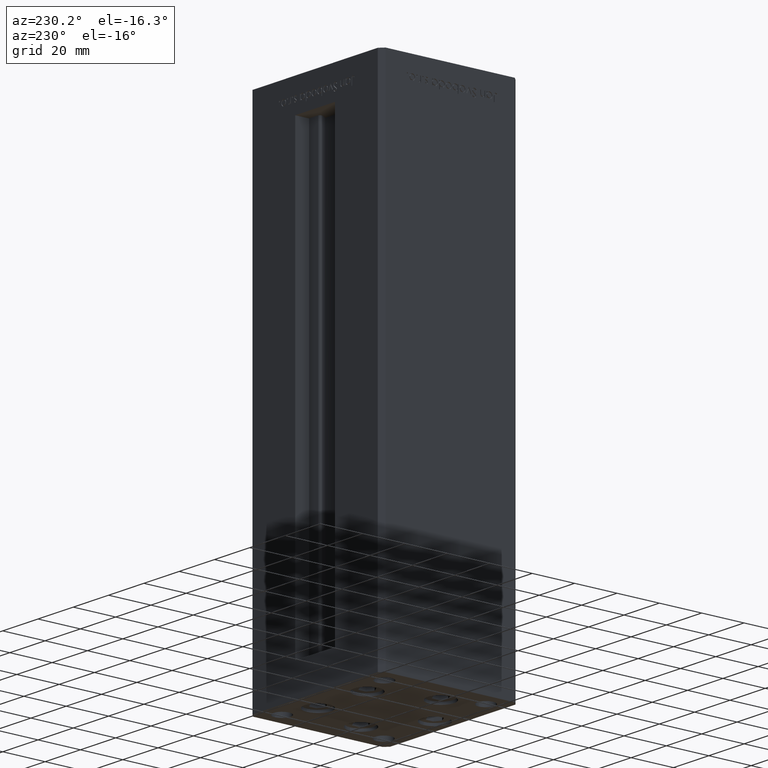
[diagram: clean part render]
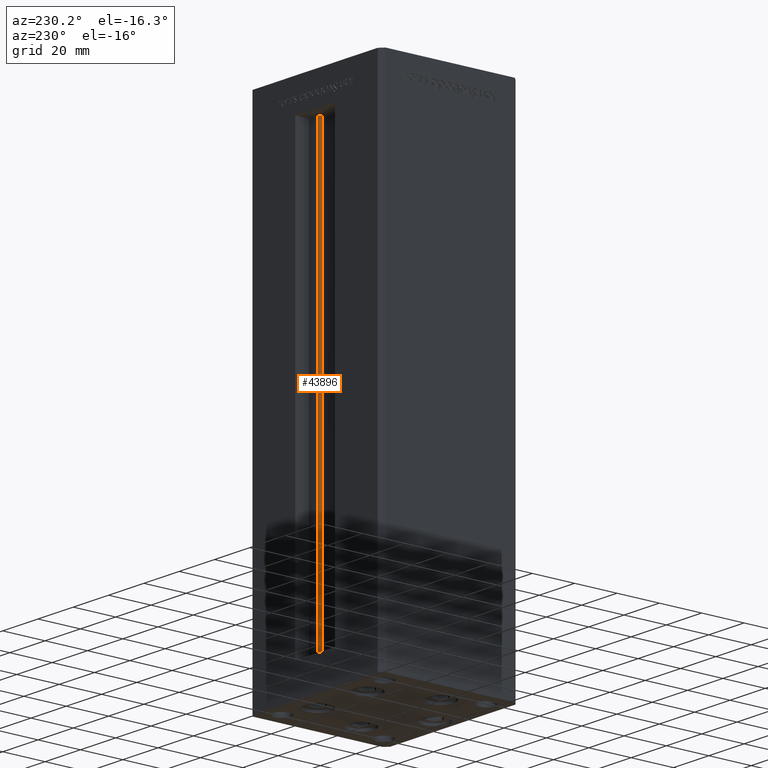
[diagram: same view with one face highlighted and labeled with its STEP entity id]
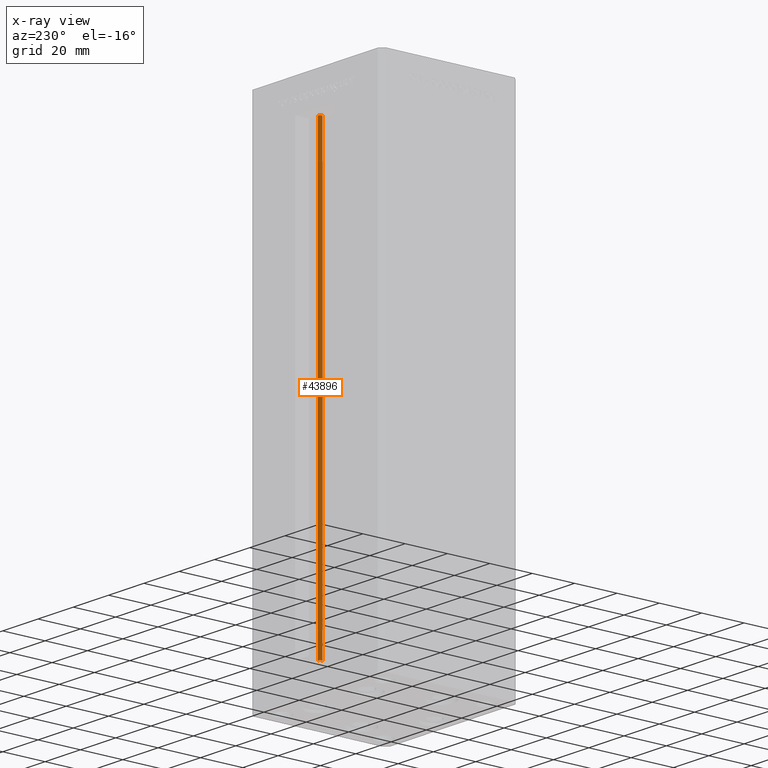
[diagram: x-ray of the same camera — body ghosted, the highlighted face saturated]
A machine part, auxiliary view. The second image highlights one B-rep face of the part: STEP entity #43896.
The next image is the same camera in x-ray: the body ghosted, the highlighted face saturated — about 0% of this face is hidden behind the body in this view.
In plain terms, the highlighted cylindrical surface (edge-blend (fillet) strip) has radius 0.9333 mm, axis along (0, 0, 1).
Its self-contained STEP definition (entity closure, byte-faithful):
#923 = CARTESIAN_POINT ( 'NONE',  ( 6.183333333334001480, 25.06666666666599141, 206.0000000000000000 ) ) ;
#3231 = FACE_OUTER_BOUND ( 'NONE', #20307, .T. ) ;
#4522 = VERTEX_POINT ( 'NONE', #28025 ) ;
#4606 = VECTOR ( 'NONE', #48228, 1000.000000000000000 ) ;
#5026 = EDGE_CURVE ( 'NONE', #4522, #5712, #26979, .T. ) ;
#5392 = DIRECTION ( 'NONE',  ( 0.000000000000000000, 0.000000000000000000, -1.000000000000000000 ) ) ;
#5712 = VERTEX_POINT ( 'NONE', #43590 ) ;
#5878 = CARTESIAN_POINT ( 'NONE',  ( 5.375042956467947164, 24.59999999999899245, 0.000000000000000000 ) ) ;
#6040 = EDGE_CURVE ( 'NONE', #18754, #24971, #20267, .T. ) ;
#8639 = LINE ( 'NONE', #44276, #4606 ) ;
#11854 = DIRECTION ( 'NONE',  ( -0.000000000000000000, -0.000000000000000000, -1.000000000000000000 ) ) ;
#16829 = AXIS2_PLACEMENT_3D ( 'NONE', #923, #5392, #45767 ) ;
#18754 = VERTEX_POINT ( 'NONE', #45979 ) ;
#20267 = CIRCLE ( 'NONE', #37110, 0.9333333333340008142 ) ;
#20307 = EDGE_LOOP ( 'NONE', ( #30987, #47096, #22255, #44426 ) ) ;
#22255 = ORIENTED_EDGE ( 'NONE', *, *, #40541, .T. ) ;
#24971 = VERTEX_POINT ( 'NONE', #28268 ) ;
#25610 = AXIS2_PLACEMENT_3D ( 'NONE', #27018, #50989, #43089 ) ;
#26979 = CIRCLE ( 'NONE', #16829, 0.9333333333340008142 ) ;
#27018 = CARTESIAN_POINT ( 'NONE',  ( 6.183333333334001480, 25.06666666666599141, 0.000000000000000000 ) ) ;
#27249 = VECTOR ( 'NONE', #38357, 1000.000000000000000 ) ;
#28025 = CARTESIAN_POINT ( 'NONE',  ( 5.375042956467948052, 24.59999999999899245, 206.0000000000000000 ) ) ;
#28229 = DIRECTION ( 'NONE',  ( 1.000000000000000000, 0.000000000000000000, 0.000000000000000000 ) ) ;
#28268 = CARTESIAN_POINT ( 'NONE',  ( 6.183333333334001480, 25.99999999999999289, 0.000000000000000000 ) ) ;
#30987 = ORIENTED_EDGE ( 'NONE', *, *, #45944, .F. ) ;
#37110 = AXIS2_PLACEMENT_3D ( 'NONE', #51685, #11854, #28229 ) ;
#38357 = DIRECTION ( 'NONE',  ( -0.000000000000000000, -0.000000000000000000, 1.000000000000000000 ) ) ;
#40541 = EDGE_CURVE ( 'NONE', #18754, #4522, #49941, .T. ) ;
#43089 = DIRECTION ( 'NONE',  ( 1.000000000000000000, 0.000000000000000000, 0.000000000000000000 ) ) ;
#43590 = CARTESIAN_POINT ( 'NONE',  ( 6.183333333334001480, 25.99999999999999289, 206.0000000000000000 ) ) ;
#43896 = ADVANCED_FACE ( 'NONE', ( #3231 ), #47565, .T. ) ;
#44276 = CARTESIAN_POINT ( 'NONE',  ( 6.183333333334001480, 25.99999999999999289, 0.000000000000000000 ) ) ;
#44426 = ORIENTED_EDGE ( 'NONE', *, *, #5026, .T. ) ;
#45767 = DIRECTION ( 'NONE',  ( 1.000000000000000000, 0.000000000000000000, 0.000000000000000000 ) ) ;
#45944 = EDGE_CURVE ( 'NONE', #24971, #5712, #8639, .T. ) ;
#45979 = CARTESIAN_POINT ( 'NONE',  ( 5.375042956467947164, 24.59999999999899245, 0.000000000000000000 ) ) ;
#47096 = ORIENTED_EDGE ( 'NONE', *, *, #6040, .F. ) ;
#47565 = CYLINDRICAL_SURFACE ( 'NONE', #25610, 0.9333333333340008142 ) ;
#48228 = DIRECTION ( 'NONE',  ( -0.000000000000000000, -0.000000000000000000, 1.000000000000000000 ) ) ;
#49941 = LINE ( 'NONE', #5878, #27249 ) ;
#50989 = DIRECTION ( 'NONE',  ( -0.000000000000000000, -0.000000000000000000, 1.000000000000000000 ) ) ;
#51685 = CARTESIAN_POINT ( 'NONE',  ( 6.183333333334001480, 25.06666666666599141, 0.000000000000000000 ) ) ;